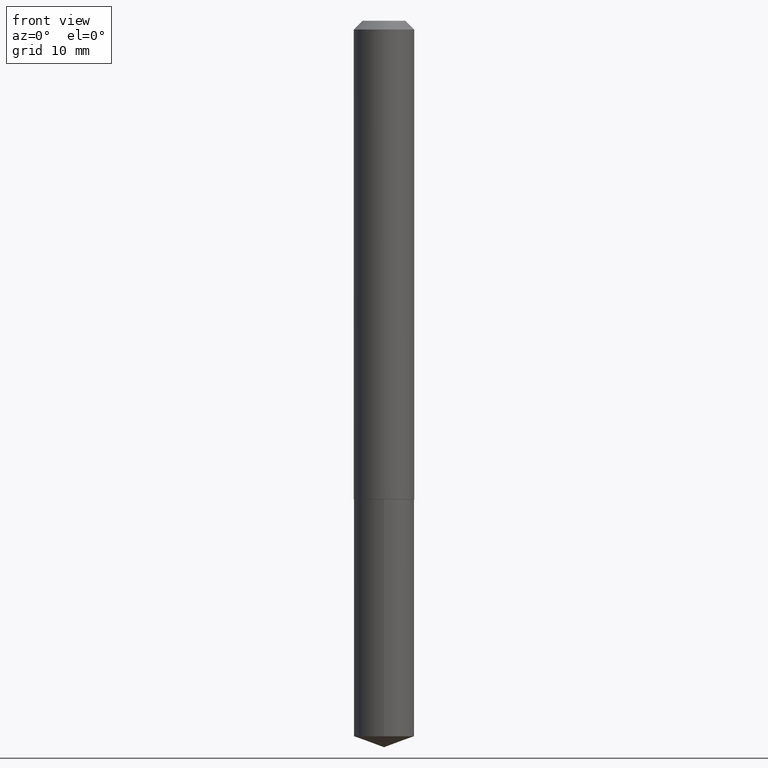
[diagram: clean part render]
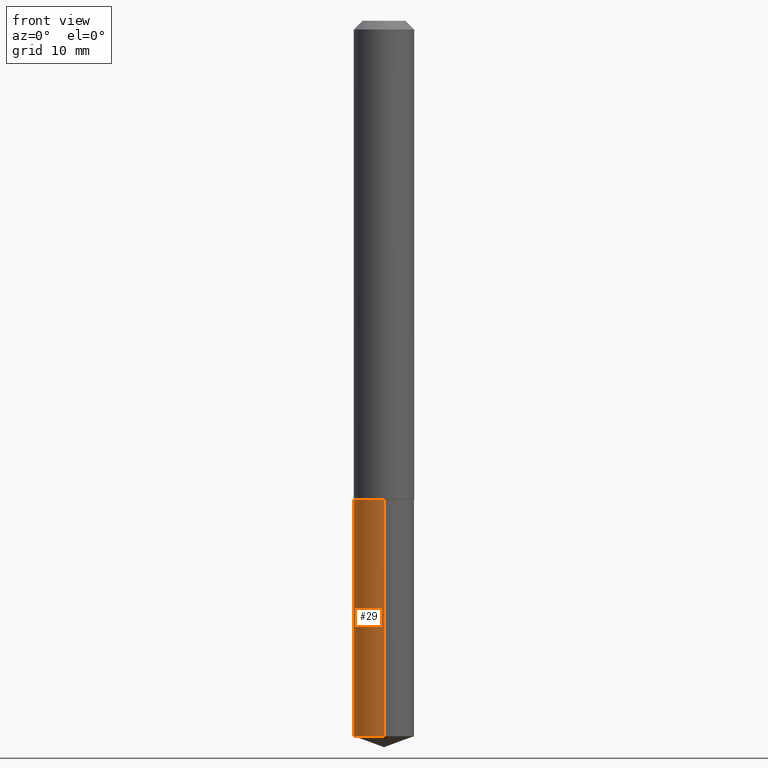
[diagram: same view with one face highlighted and labeled with its STEP entity id]
A machine part, front view. The second image highlights one B-rep face of the part: STEP entity #29.
In plain terms, the highlighted cylindrical surface (edge-blend (fillet) strip) has radius 2.7495 mm, axis along (-0, 0, 1).
Its self-contained STEP definition (entity closure, byte-faithful):
#21 = CYLINDRICAL_SURFACE ( 'NONE', #172, 0.1082499999999999990 ) ;
#23 = EDGE_CURVE ( 'NONE', #198, #330, #136, .T. ) ;
#29 = ADVANCED_FACE ( 'NONE', ( #282 ), #21, .T. ) ;
#52 = DIRECTION ( 'NONE',  ( -6.982962677686265922E-15, -1.000000000000000000, 2.523647107311097814E-15 ) ) ;
#58 = ORIENTED_EDGE ( 'NONE', *, *, #208, .F. ) ;
#65 = CARTESIAN_POINT ( 'NONE',  ( -7.559057098594963527E-16, -0.1082500000000059803, -1.712499999999999467 ) ) ;
#70 = CARTESIAN_POINT ( 'NONE',  ( -7.559057098594963527E-16, -0.1082500000000059803, -1.712499999999999467 ) ) ;
#73 = LINE ( 'NONE', #102, #305 ) ;
#78 = VECTOR ( 'NONE', #85, 39.37007874015748143 ) ;
#85 = DIRECTION ( 'NONE',  ( -2.446104833064120816E-29, 3.490570512152038331E-15, 1.000000000000000000 ) ) ;
#87 = ORIENTED_EDGE ( 'NONE', *, *, #23, .T. ) ;
#95 = CARTESIAN_POINT ( 'NONE',  ( 7.691625114603710599E-16, 0.1082499999999940177, -1.712500000000000133 ) ) ;
#98 = ORIENTED_EDGE ( 'NONE', *, *, #374, .T. ) ;
#102 = CARTESIAN_POINT ( 'NONE',  ( 7.691625114603501551E-16, 0.1082499999999940177, -1.712500000000000133 ) ) ;
#106 = AXIS2_PLACEMENT_3D ( 'NONE', #242, #378, #320 ) ;
#115 = VERTEX_POINT ( 'NONE', #95 ) ;
#117 = LINE ( 'NONE', #65, #78 ) ;
#126 = CARTESIAN_POINT ( 'NONE',  ( 4.187865330592046310E-29, -5.979161792768886381E-15, -1.712499999999999911 ) ) ;
#136 = CIRCLE ( 'NONE', #106, 0.1082499999999999990 ) ;
#165 = DIRECTION ( 'NONE',  ( -2.446104833064120816E-29, 3.490570512152038331E-15, 1.000000000000000000 ) ) ;
#172 = AXIS2_PLACEMENT_3D ( 'NONE', #346, #312, #220 ) ;
#176 = VERTEX_POINT ( 'NONE', #70 ) ;
#191 = CARTESIAN_POINT ( 'NONE',  ( 7.691625114603707641E-16, 0.1082499999999910478, -2.559000222140684233 ) ) ;
#198 = VERTEX_POINT ( 'NONE', #191 ) ;
#208 = EDGE_CURVE ( 'NONE', #198, #115, #73, .T. ) ;
#209 = EDGE_LOOP ( 'NONE', ( #58, #87, #98, #298 ) ) ;
#220 = DIRECTION ( 'NONE',  ( -6.982962677686265922E-15, -1.000000000000000000, 2.523647107311097814E-15 ) ) ;
#223 = CARTESIAN_POINT ( 'NONE',  ( -7.559057098594756451E-16, -0.1082500000000089085, -2.559000222140683345 ) ) ;
#240 = DIRECTION ( 'NONE',  ( -2.446104833064120816E-29, 3.490570512152038331E-15, 1.000000000000000000 ) ) ;
#242 = CARTESIAN_POINT ( 'NONE',  ( 6.258493615160226156E-29, -8.933930506703307984E-15, -2.559000222140683789 ) ) ;
#282 = FACE_OUTER_BOUND ( 'NONE', #209, .T. ) ;
#297 = EDGE_CURVE ( 'NONE', #115, #176, #367, .T. ) ;
#298 = ORIENTED_EDGE ( 'NONE', *, *, #297, .F. ) ;
#305 = VECTOR ( 'NONE', #165, 39.37007874015748143 ) ;
#312 = DIRECTION ( 'NONE',  ( -2.446104833064120816E-29, 3.490570512152038331E-15, 1.000000000000000000 ) ) ;
#320 = DIRECTION ( 'NONE',  ( -6.982962677686265922E-15, -1.000000000000000000, 5.047294214622195629E-15 ) ) ;
#330 = VERTEX_POINT ( 'NONE', #223 ) ;
#346 = CARTESIAN_POINT ( 'NONE',  ( 4.187865330592046310E-29, -5.979161792768886381E-15, -1.712499999999999911 ) ) ;
#361 = AXIS2_PLACEMENT_3D ( 'NONE', #126, #240, #52 ) ;
#367 = CIRCLE ( 'NONE', #361, 0.1082499999999999990 ) ;
#374 = EDGE_CURVE ( 'NONE', #330, #176, #117, .T. ) ;
#378 = DIRECTION ( 'NONE',  ( -2.446104833064120816E-29, 3.490570512152038331E-15, 1.000000000000000000 ) ) ;